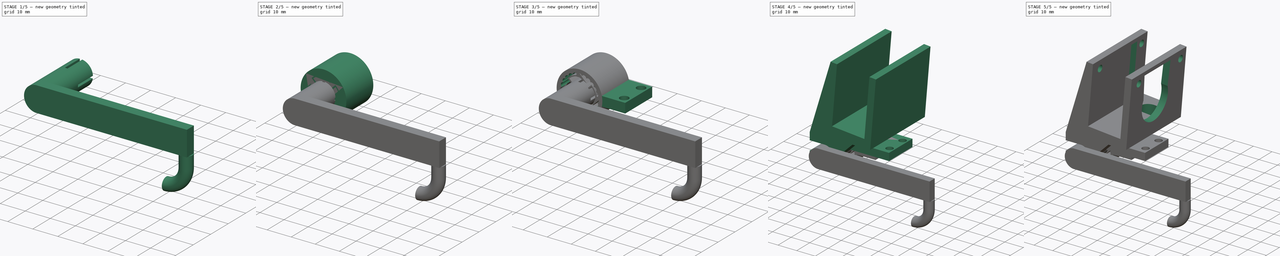
[diagram: build sequence overview — one tinted view per stage of 5, left to right]
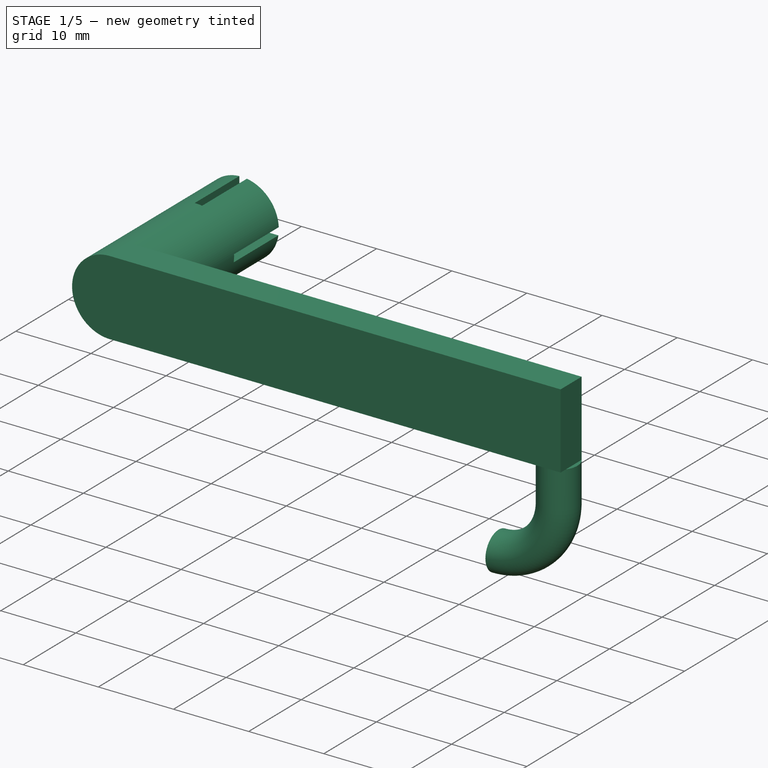
[diagram: stage 1 of 5 — iso view after this stage's code; geometry added in this stage tinted green]
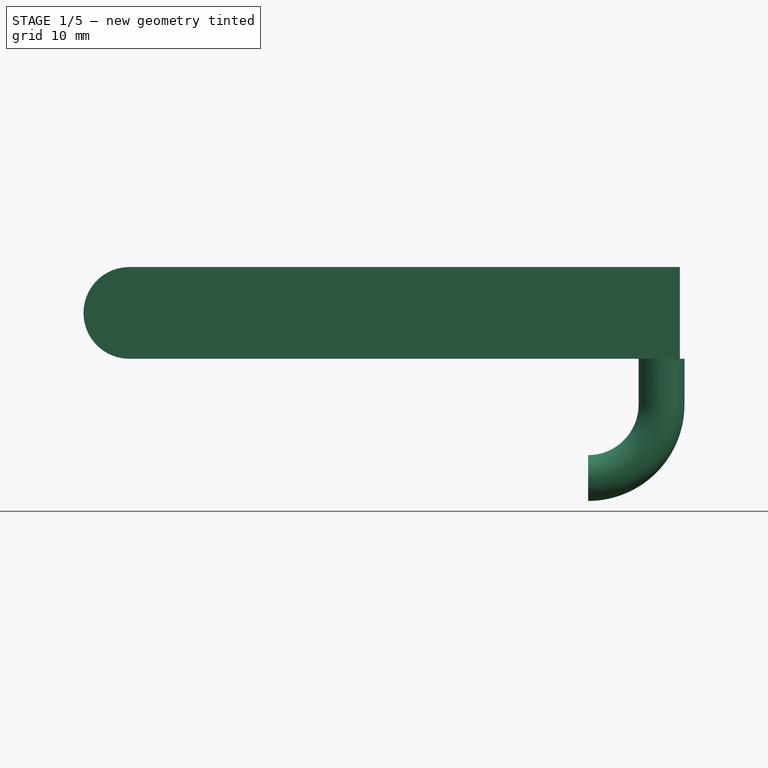
[diagram: stage 1 of 5 — front view after this stage's code; geometry added in this stage tinted green]
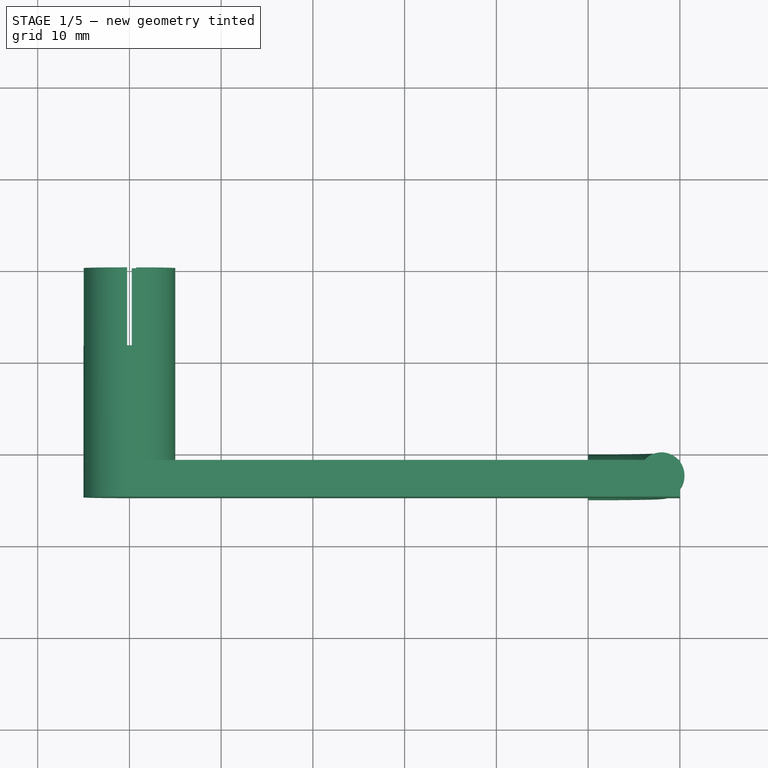
[diagram: stage 1 of 5 — top view after this stage's code; geometry added in this stage tinted green]
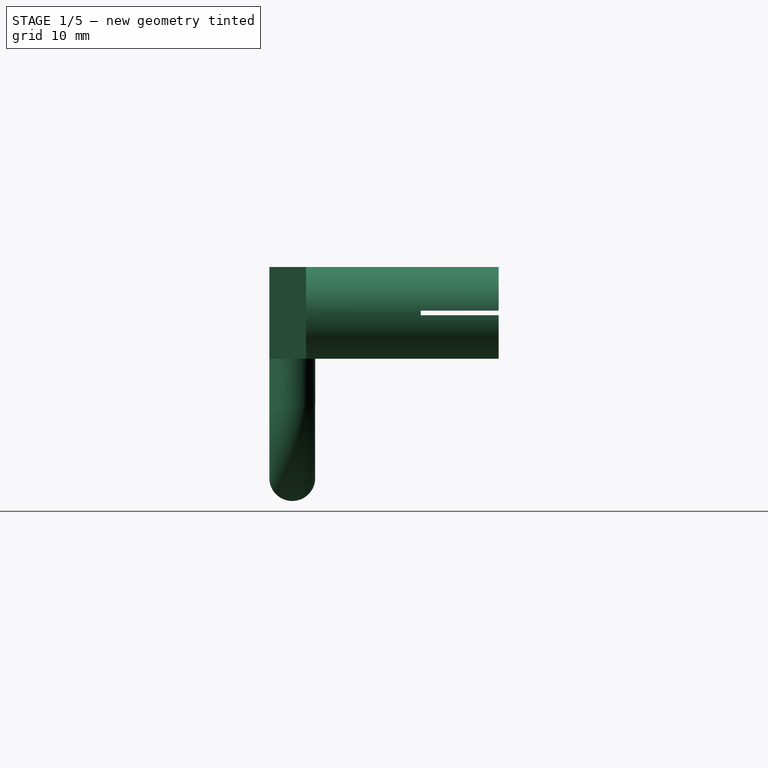
[diagram: stage 1 of 5 — right view after this stage's code; geometry added in this stage tinted green]
FCSTD DOCUMENT  (FreeCAD 0.19R24291 (Git))
Label: cameraholder
License: All rights reserved
LicenseURL: http://en.wikipedia.org/wiki/All_rights_reserved
objects: Sketcher::SketchObject×19, PartDesign::Pocket×10, PartDesign::Pad×7, PartDesign::Body×5, PartDesign::PolarPattern×2, PartDesign::AdditivePipe×1
note: 62 computed .brp shape members not serialized (recipe doc carries the construction recipe); baked Part::Feature solids carry a one-line shape summary decoded from their .brp

FEATURE [PartDesign::Body] Body012  label="rachet-in"
  Group = -> [Sketch080,Pad029,PolarPattern001]
  Origin = -> Origin012
  Placement = pos=(-12,0,2) rot=(0,1,0;0.785398rad)
  Tip = -> PolarPattern001
FEATURE [Sketcher::SketchObject] Sketch083
  FullyConstrained = true
  MapMode = 5
  Placement = pos=(0,0,0) rot=(1,0,0;1.5708rad)
  Support = -> [XZ_Plane013]
  sketch-geometry (1):
    g0: Circle CenterX=0 CenterY=0 CenterZ=0 NormalX=0 NormalY=0 NormalZ=1 AngleXU=0 Radius=5
  constraints (2):
    c: Coincident(g0,g-1)
    c: Diameter(g0) = 10
FEATURE [PartDesign::Pad] Pad031  label="poros"
  Direction = (1,1,1)
  Length = 25
  Length2 = 100
  Placement = pos=(0,0,0) rot=(1,0,0;1.5708rad)
  Profile = -> Sketch083
  Type = 0
FEATURE [Sketcher::SketchObject] Sketch084
  FullyConstrained = true
  MapMode = 5
  Placement = pos=(0,-25,5.5e-15) rot=(1,0,0;1.5708rad)
  Support = -> [Pad031]
  sketch-geometry (4):
    g0: LineSegment StartX=0 StartY=5 StartZ=0 EndX=60 EndY=5 EndZ=0
    g1: LineSegment StartX=60 StartY=5 StartZ=0 EndX=60 EndY=-5 EndZ=0
    g2: LineSegment StartX=60 StartY=-5 StartZ=0 EndX=0 EndY=-5 EndZ=0
    g3: LineSegment StartX=0 StartY=-5 StartZ=0 EndX=0 EndY=5 EndZ=0
  constraints (11):
    c: Coincident(g0,g1)
    c: Coincident(g1,g2)
    c: Coincident(g2,g3)
    c: Coincident(g3,g0)
    c: Horizontal(g0)
    c: Horizontal(g2)
    c: Vertical(g1)
    c: Vertical(g3)
    c: Symmetric(g0,g2,g-1)
    c: DistanceY(g3,g3) = 10
    c: DistanceX(g0,g0) = 60
FEATURE [PartDesign::Pad] Pad032  label="handle"
  BaseFeature = -> Pad031
  Direction = (1,1,1)
  Length = 4
  Length2 = 100
  Placement = pos=(0,0,0) rot=(1,0,0;1.5708rad)
  Profile = -> Sketch084
  Reversed = true
  Type = 0
FEATURE [Sketcher::SketchObject] Sketch085
  FullyConstrained = true
  MapMode = 5
  Placement = pos=(0,-4.7e-15,-5) rot=(1,0,0;3.14159rad)
  Support = -> [Pad032]
  sketch-geometry (1):
    g0: Circle CenterX=58 CenterY=22.5 CenterZ=0 NormalX=0 NormalY=0 NormalZ=1 AngleXU=0 Radius=2.5
  constraints (3):
    c: DistanceX(g0) = 58
    c: DistanceY(g0) = 22.5
    c: Diameter(g0) = 5
FEATURE [Sketcher::SketchObject] Sketch086
  AttachmentOffset = pos=(0,0,-2) rot=(0,0,1;0rad)
  FullyConstrained = true
  MapMode = 5
  Placement = pos=(0,-23,1.63e-14) rot=(1,0,0;1.5708rad)
  Support = -> [Pad032]
  sketch-geometry (2):
    g0: ArcOfCircle CenterX=50 CenterY=-10 CenterZ=0 NormalX=0 NormalY=0 NormalZ=1 AngleXU=0 Radius=8 StartAngle=4.71239 EndAngle=6.28319
    g1: LineSegment StartX=58 StartY=-10 StartZ=0 EndX=58 EndY=-5 EndZ=0
  constraints (8):
    c: Angle(g0) = 1.5708
    c: Vertical(g0,g0)
    c: Radius(g0) = 8
    c: DistanceX(g0) = 50
    c: Coincident(g1,g0)
    c: Vertical(g1)
    c: DistanceY(g1,g1) = 5
    c: DistanceY(g1) = -5
FEATURE [PartDesign::AdditivePipe] AdditivePipe
  AuxilleryCurvelinear = true
  AuxillerySpineTangent = false
  BaseFeature = -> Pad032
  Binormal = (0,0,0)
  Mode = 0
  Placement = pos=(0,0,0) rot=(1,0,0;1.5708rad)
  Profile = -> Sketch085
  Spine = -> Sketch086
  SpineTangent = false
  Transformation = 0
  Transition = 0
FEATURE [Sketcher::SketchObject] Sketch087
  FullyConstrained = true
  MapMode = 5
  Placement = pos=(0,0,0) rot=(-1,0,0;1.5708rad)
  Support = -> [AdditivePipe]
  sketch-geometry (12):
    g0: LineSegment StartX=-0.75 StartY=6.25 StartZ=0 EndX=-0.75 EndY=0.25 EndZ=0
    g1: LineSegment StartX=-0.75 StartY=0.25 StartZ=0 EndX=-6.25 EndY=0.25 EndZ=0
    g2: LineSegment StartX=-6.25 StartY=0.25 StartZ=0 EndX=-6.25 EndY=-0.75 EndZ=0
    g3: LineSegment StartX=-6.25 StartY=-0.75 StartZ=0 EndX=-0.25 EndY=-0.75 EndZ=0
    g4: LineSegment StartX=-0.25 StartY=-0.75 StartZ=0 EndX=-0.25 EndY=-6.25 EndZ=0
    g5: LineSegment StartX=-0.25 StartY=-6.25 StartZ=0 EndX=0.75 EndY=-6.25 EndZ=0
    g6: LineSegment StartX=0.75 StartY=-6.25 StartZ=0 EndX=0.75 EndY=-0.25 EndZ=0
    g7: LineSegment StartX=0.75 StartY=-0.25 StartZ=0 EndX=6.25 EndY=-0.25 EndZ=0
    g8: LineSegment StartX=6.25 StartY=-0.25 StartZ=0 EndX=6.25 EndY=0.75 EndZ=0
    g9: LineSegment StartX=6.25 StartY=0.75 StartZ=0 EndX=0.25 EndY=0.75 EndZ=0
    g10: LineSegment StartX=0.25 StartY=0.75 StartZ=0 EndX=0.25 EndY=6.25 EndZ=0
    g11: LineSegment StartX=0.25 StartY=6.25 StartZ=0 EndX=-0.75 EndY=6.25 EndZ=0
  constraints (36):
    c: Vertical(g0)
    c: Coincident(g0,g1)
    c: Coincident(g1,g2)
    c: Vertical(g2)
    c: Coincident(g2,g3)
    c: Horizontal(g3)
    c: Coincident(g3,g4)
    c: Vertical(g4)
    c: Coincident(g4,g5)
    c: Horizontal(g5)
    c: Coincident(g5,g6)
    c: Vertical(g6)
    c: Coincident(g6,g7)
    c: Horizontal(g7)
    c: Coincident(g7,g8)
    c: Vertical(g8)
    c: Coincident(g8,g9)
    c: Horizontal(g9)
    c: Coincident(g9,g10)
    c: Vertical(g10)
    c: Coincident(g10,g11)
    c: Coincident(g11,g0)
    c: Horizontal(g11)
    c: DistanceX(g11,g11) = 1
    c: Equal(g11,g2)
    c: Equal(g2,g5)
    c: Equal(g5,g8)
    c: Equal(g9,g0)
    c: Equal(g0,g3)
    c: Equal(g3,g6)
    c: Horizontal(g1)
    c: Equal(g4,g7)
    c: DistanceY(g8) = 0.75
    c: DistanceX(g9) = 0.25
    c: DistanceY(g0) = 0.25
    c: DistanceX(g3,g3) = 6
FEATURE [PartDesign::Pocket] Pocket027
  BaseFeature = -> AdditivePipe
  Length = 8.5
  Length2 = 100
  Placement = pos=(0,0,0) rot=(1,0,0;1.5708rad)
  Profile = -> Sketch087
  Type = 0
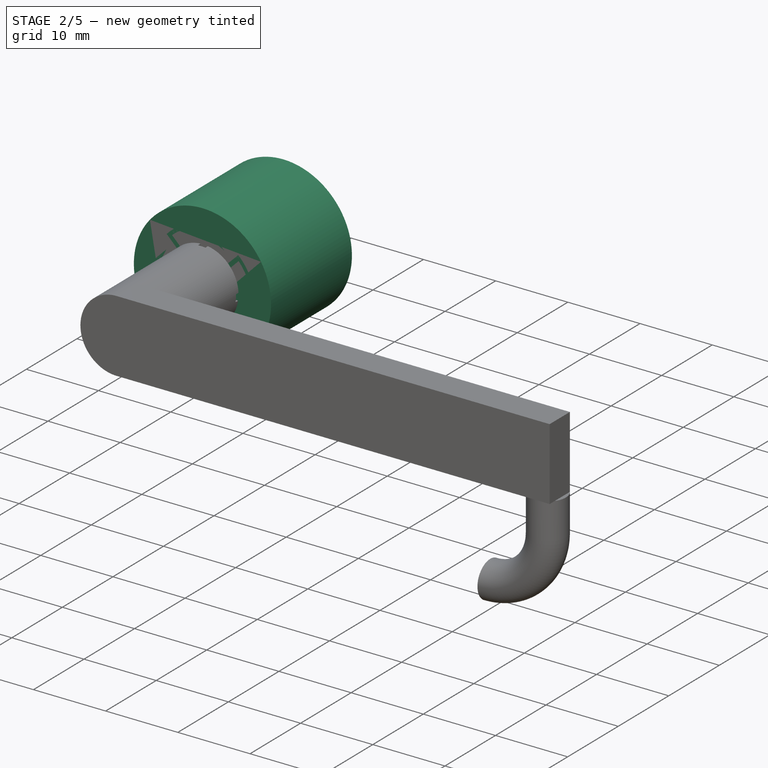
[diagram: stage 2 of 5 — iso view after this stage's code; geometry added in this stage tinted green]
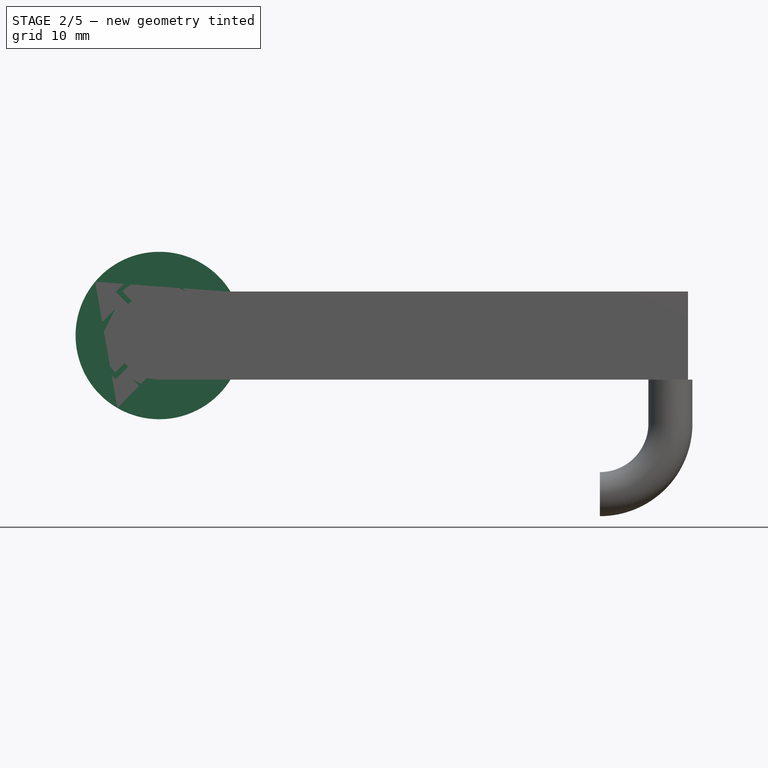
[diagram: stage 2 of 5 — front view after this stage's code; geometry added in this stage tinted green]
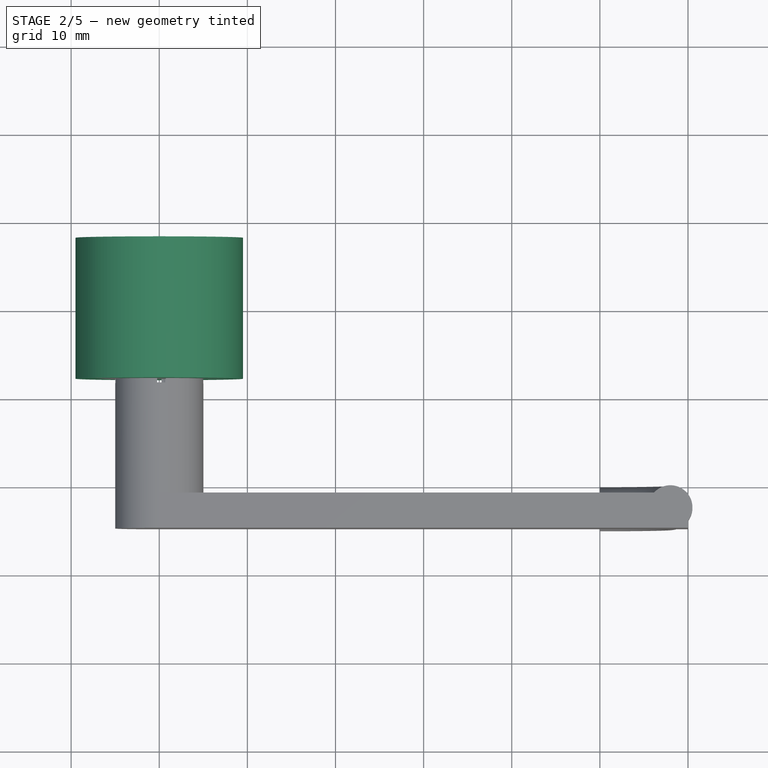
[diagram: stage 2 of 5 — top view after this stage's code; geometry added in this stage tinted green]
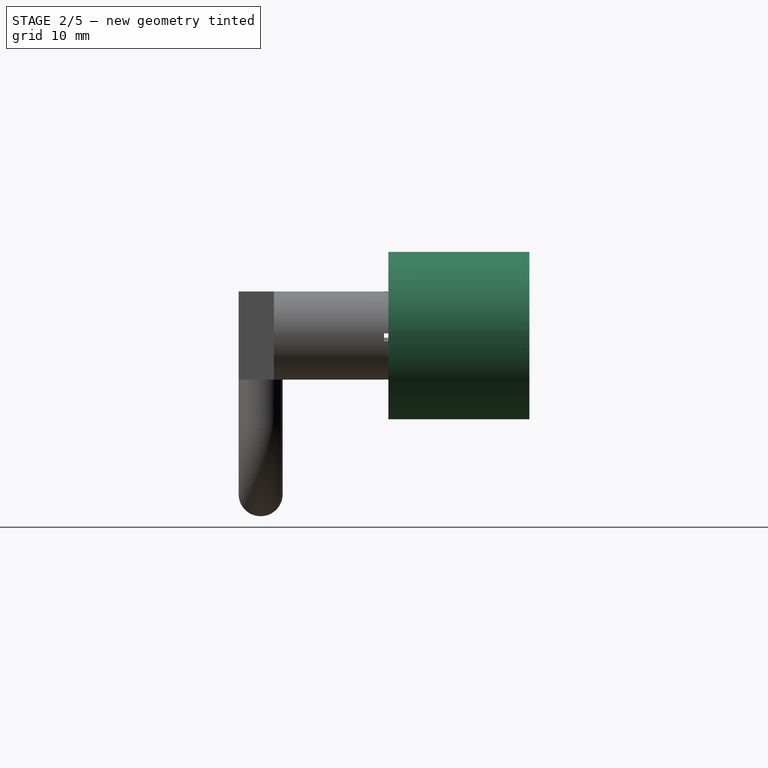
[diagram: stage 2 of 5 — right view after this stage's code; geometry added in this stage tinted green]
FEATURE [PartDesign::Body] Body010  label="camera-holder-clip"
  Group = -> [Sketch068,Pad026,Sketch069,Pocket020,Sketch070,Pocket021,Sketch071,Sketch072,Pocket022,Pocket023,Sketch073,Pocket024,Sketch074,Pocket025]
  Origin = -> Origin010
  Placement = pos=(8,0,0) rot=(0,0,1;0rad)
  Tip = -> Pocket025
FEATURE [Sketcher::SketchObject] Sketch078
  FullyConstrained = true
  MapMode = 5
  Placement = pos=(0,0,0) rot=(1,0,0;1.5708rad)
  Support = -> [XZ_Plane011]
  sketch-geometry (8):
    g0: Circle CenterX=0 CenterY=0 CenterZ=0 NormalX=0 NormalY=0 NormalZ=1 AngleXU=0 Radius=9
    g1: LineSegment StartX=0.866025 StartY=-7.5 StartZ=0 EndX=6.9282 EndY=3 EndZ=0
    g2: LineSegment StartX=6.06218 StartY=4.5 StartZ=0 EndX=-6.06218 EndY=4.5 EndZ=0
    g3: LineSegment StartX=-6.9282 StartY=3 StartZ=0 EndX=-0.866025 EndY=-7.5 EndZ=0
    g4: Circle CenterX=0 CenterY=0 CenterZ=0 NormalX=0 NormalY=0 NormalZ=1 AngleXU=0 Radius=7
    g5: ArcOfCircle CenterX=2.1866e-12 CenterY=-7 CenterZ=0 NormalX=0 NormalY=0 NormalZ=1 AngleXU=0 Radius=1 StartAngle=3.66519 EndAngle=5.75959
    g6: ArcOfCircle CenterX=6.06218 CenterY=3.5 CenterZ=0 NormalX=0 NormalY=0 NormalZ=1 AngleXU=0 Radius=1 StartAngle=5.75959 EndAngle=7.85398
    g7: ArcOfCircle CenterX=-6.06218 CenterY=3.5 CenterZ=0 NormalX=0 NormalY=0 NormalZ=1 AngleXU=0 Radius=1 StartAngle=1.5708 EndAngle=3.66519
  constraints (19):
    c: Diameter(g0) = 18
    c: Equal(g1,g2)
    c: Equal(g1,g3)
    c: Coincident(g4,g0)
    c: Tangent(g1,g5) = -1.5708
    c: Tangent(g3,g5) = -1.5708
    c: Tangent(g1,g6) = -1.5708
    c: Tangent(g2,g6) = -1.5708
    c: Tangent(g2,g7) = -1.5708
    c: Tangent(g3,g7) = -1.5708
    c: PointOnObject(g6,g4)
    c: PointOnObject(g7,g4)
    c: PointOnObject(g5,g4)
    c: Diameter(g6) = 2
    c: Equal(g6,g7)
    c: Equal(g7,g5)
    c: Horizontal(g2)
    c: Diameter(g4) = 14
    c: Coincident(g0,g-1)
FEATURE [Sketcher::SketchObject] Sketch079
  FullyConstrained = true
  MapMode = 5
  Placement = pos=(0,0,0) rot=(1,0,0;1.5708rad)
  Support = -> [XZ_Plane011]
  sketch-geometry (1):
    g0: Circle CenterX=0 CenterY=0 CenterZ=0 NormalX=0 NormalY=0 NormalZ=1 AngleXU=0 Radius=9.5
  constraints (2):
    c: Coincident(g0,g-1)
    c: Diameter(g0) = 19
FEATURE [PartDesign::Pad] Pad028
  Direction = (1,1,1)
  Length = 16
  Length2 = 100
  Midplane = true
  Placement = pos=(0,0,0) rot=(1,0,0;1.5708rad)
  Profile = -> Sketch079
  Reversed = true
  Type = 0
FEATURE [Sketcher::SketchObject] Sketch080
  FullyConstrained = true
  MapMode = 5
  Placement = pos=(0,0,0) rot=(1,0,0;1.5708rad)
  Support = -> [XZ_Plane012]
  sketch-geometry (10):
    g0: ArcOfCircle CenterX=0 CenterY=6.5 CenterZ=0 NormalX=0 NormalY=0 NormalZ=1 AngleXU=0 Radius=1.5 StartAngle=1.5708 EndAngle=2.80176
    g1: ArcOfCircle CenterX=0 CenterY=0.487745 CenterZ=0 NormalX=0 NormalY=0 NormalZ=1 AngleXU=0 Radius=6.66404 StartAngle=1.78464 EndAngle=2.40797
    g2: ArcOfCircle CenterX=0 CenterY=0.487745 CenterZ=0 NormalX=0 NormalY=0 NormalZ=1 AngleXU=0 Radius=6.17634 StartAngle=1.80182 EndAngle=2.32044
    g3: LineSegment StartX=-4.20841 StartY=5.00841 StartZ=0 EndX=0 EndY=0.8 EndZ=0
    g4: LineSegment StartX=-1.41421 StartY=7 StartZ=0 EndX=-1.41421 EndY=6.5 EndZ=0
    g5: LineSegment StartX=-1.41421 StartY=6.5 StartZ=0 EndX=0 EndY=6.5 EndZ=0
    g6: ArcOfCircle CenterX=0 CenterY=0 CenterZ=0 NormalX=0 NormalY=0 NormalZ=1 AngleXU=0 Radius=0.8 StartAngle=2.35619 EndAngle=7.85398
    g7: LineSegment StartX=-4.94975 StartY=4.94975 StartZ=0 EndX=-0.565685 EndY=0.565685 EndZ=0
    g8: LineSegment StartX=1e-16 StartY=8 StartZ=0 EndX=3 EndY=5.00841 EndZ=0
    g9: LineSegment StartX=3 StartY=5.00841 StartZ=0 EndX=0 EndY=6.5 EndZ=0
  constraints (30):
    c: PointOnObject(g1,g-2)
    c: Coincident(g1,g0)
    c: Diameter(g0) = 3
    c: DistanceY(g0) = 6.5
    c: Coincident(g2,g1)
    c: Coincident(g3,g2)
    c: PointOnObject(g3,g-2)
    c: DistanceY(g3) = 0.8
    c: Vertical(g2,g0)
    c: Coincident(g4,g0)
    c: Coincident(g4,g2)
    c: PointOnObject(g0,g-2)
    c: PointOnObject(g0,g-2)
    c: Coincident(g5,g2)
    c: Horizontal(g5)
    c: DistanceY(g4,g4) = 0.5
    c: Angle(g3,g-2) = 2.35619
    c: Coincident(g6,g3)
    c: Coincident(g7,g1)
    c: Coincident(g7,g6)
    c: Parallel(g7,g3)
    c: Distance(g1,g6) = 7
    c: Coincident(g6,g-1)
    c: Angle(g6) = 5.49779
    c: Coincident(g8,g0)
    c: Coincident(g9,g8)
    c: Coincident(g9,g0)
    c: Horizontal(g8,g2)
    c: DistanceX(g0,g8) = 3
    c: Coincident(g0,g5)
FEATURE [PartDesign::Pad] Pad029
  Direction = (1,1,1)
  Length = 16
  Length2 = 100
  Midplane = true
  Placement = pos=(0,0,0) rot=(1,0,0;1.5708rad)
  Profile = -> Sketch080
  Type = 0
FEATURE [PartDesign::Body] Body011  label="rachet-out"
  Group = -> [Sketch078,Sketch079,Pad028,Pocket026,PolarPattern,Sketch081,Pad030,Sketch082,Pocket]
  Origin = -> Origin011
  Placement = pos=(-12,0,2) rot=(0,0,1;0rad)
  Tip = -> Pocket
FEATURE [PartDesign::PolarPattern] PolarPattern001
  Angle = 360
  Axis = -> Sketch080 [N_Axis]
  BaseFeature = -> Pad029
  Occurrences = 4
  Originals = -> [Pad029]
  Placement = pos=(0,0,0) rot=(1,0,0;1.5708rad)
FEATURE [Sketcher::SketchObject] Sketch088
  AttachmentOffset = pos=(0,0,0) rot=(0,1,0;3.14159rad)
  FullyConstrained = true
  MapMode = 5
  Placement = pos=(0,0,0) rot=(0,0.707107,0.707107;3.14159rad)
  Support = -> [XZ_Plane013]
  sketch-geometry (1):
    g0: Circle CenterX=0 CenterY=0 CenterZ=0 NormalX=0 NormalY=0 NormalZ=1 AngleXU=0 Radius=1
  constraints (2):
    c: Coincident(g0,g-1)
    c: Diameter(g0) = 2
FEATURE [PartDesign::Pocket] Pocket028
  BaseFeature = -> Pocket027
  Length = 8.5
  Length2 = 100
  Placement = pos=(0,0,0) rot=(1,0,0;1.5708rad)
  Profile = -> Sketch088
  Type = 0
FEATURE [PartDesign::Body] Body013  label="suckerhandle"
  Group = -> [Sketch083,Pad031,Sketch084,Pad032,Sketch085,Sketch086,AdditivePipe,Sketch087,Pocket027,Sketch088,Pocket028]
  Origin = -> Origin013
  Placement = pos=(-12,0,2) rot=(0,0,1;0rad)
  Tip = -> Pocket028
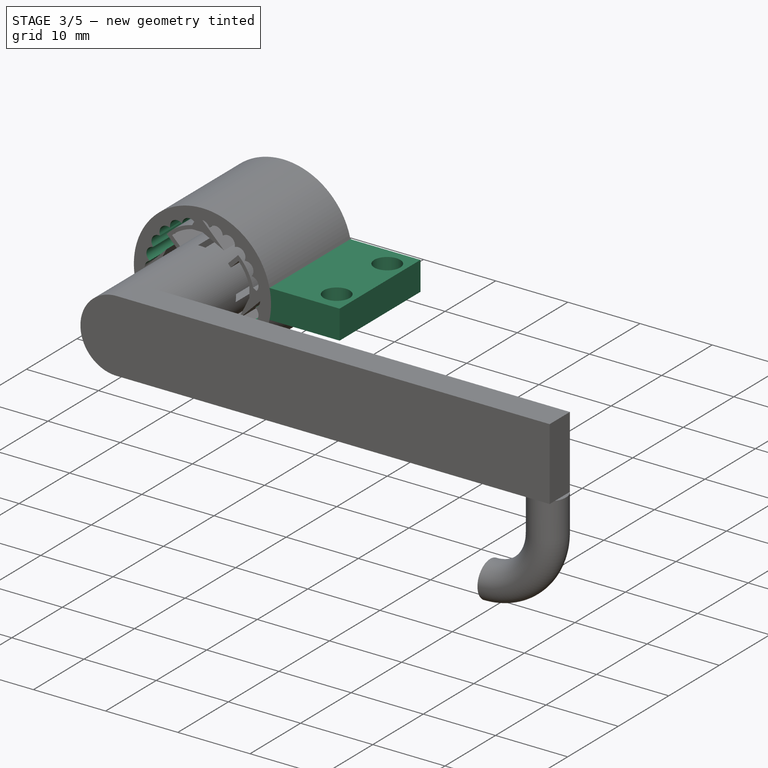
[diagram: stage 3 of 5 — iso view after this stage's code; geometry added in this stage tinted green]
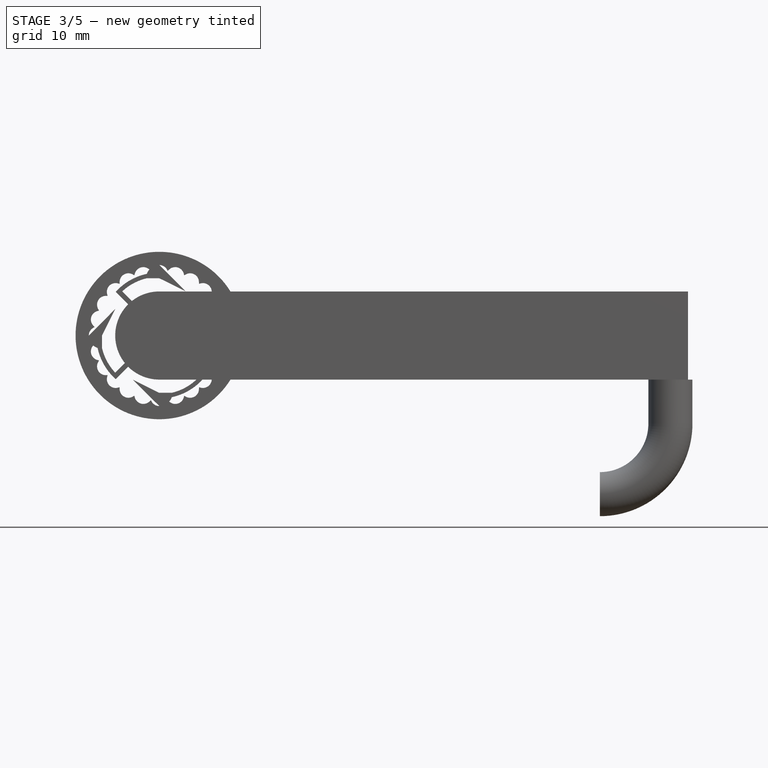
[diagram: stage 3 of 5 — front view after this stage's code; geometry added in this stage tinted green]
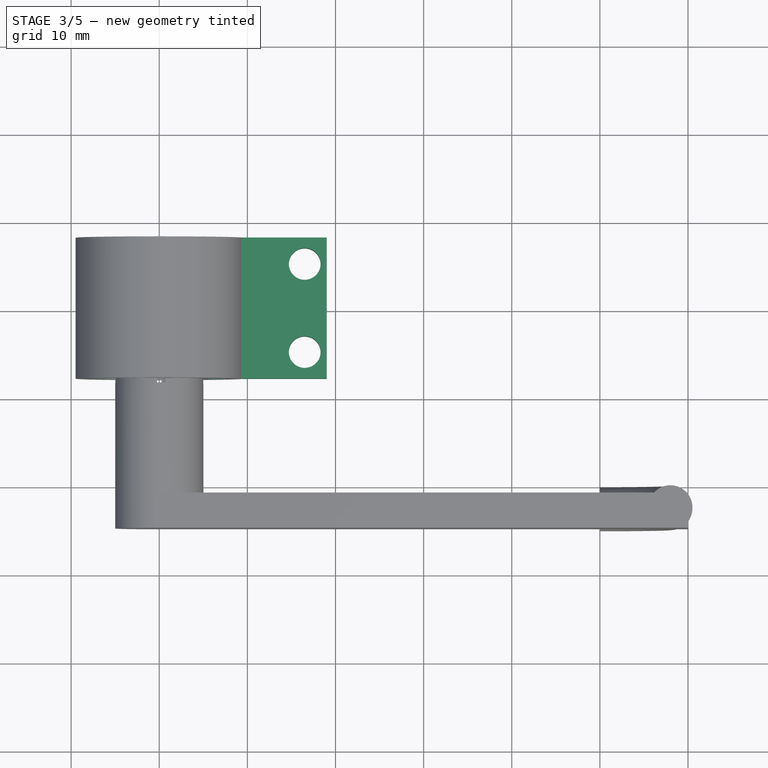
[diagram: stage 3 of 5 — top view after this stage's code; geometry added in this stage tinted green]
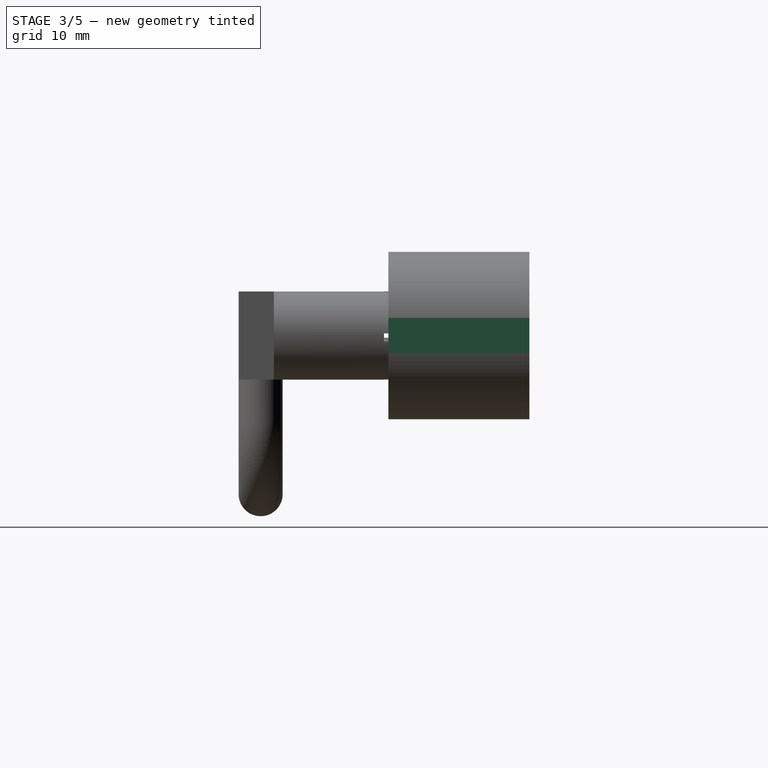
[diagram: stage 3 of 5 — right view after this stage's code; geometry added in this stage tinted green]
FEATURE [PartDesign::Pocket] Pocket026
  BaseFeature = -> Pad028
  Length = 5
  Length2 = 100
  Midplane = true
  Placement = pos=(0,0,0) rot=(1,0,0;1.5708rad)
  Profile = -> Sketch078
  Type = 1
FEATURE [PartDesign::PolarPattern] PolarPattern
  Angle = 360
  Axis = -> Y_Axis011
  BaseFeature = -> Pocket026
  Occurrences = 8
  Originals = -> [Pocket026]
  Placement = pos=(0,0,0) rot=(1,0,0;1.5708rad)
FEATURE [PartDesign::Body] Body
  Group = -> [Sketch,Pad]
  Origin = -> Origin
  Placement = pos=(-20,0,0) rot=(0,0,1;0rad)
  Tip = -> Pad
FEATURE [Sketcher::SketchObject] Sketch081
  FullyConstrained = true
  MapMode = 5
  Placement = pos=(0,0,0) rot=(1,0,0;1.5708rad)
  Support = -> [XZ_Plane011]
  sketch-geometry (4):
    g0: LineSegment StartX=19 StartY=2 StartZ=0 EndX=9 EndY=2 EndZ=0
    g1: LineSegment StartX=9 StartY=2 StartZ=0 EndX=9 EndY=-2 EndZ=0
    g2: LineSegment StartX=9 StartY=-2 StartZ=0 EndX=19 EndY=-2 EndZ=0
    g3: LineSegment StartX=19 StartY=-2 StartZ=0 EndX=19 EndY=2 EndZ=0
  constraints (11):
    c: Coincident(g0,g1)
    c: Coincident(g1,g2)
    c: Coincident(g2,g3)
    c: Coincident(g3,g0)
    c: Horizontal(g0)
    c: Horizontal(g2)
    c: Vertical(g1)
    c: DistanceX(g-1,g1) = 9
    c: DistanceX(g0,g0) = 10
    c: Symmetric(g0,g2,g-1)
    c: DistanceY(g3,g3) = 4
FEATURE [PartDesign::Pad] Pad030
  BaseFeature = -> PolarPattern
  Direction = (1,1,1)
  Length = 16
  Length2 = 100
  Midplane = true
  Placement = pos=(0,0,0) rot=(1,0,0;1.5708rad)
  Profile = -> Sketch081
  Type = 0
FEATURE [Sketcher::SketchObject] Sketch082
  FullyConstrained = true
  MapMode = 5
  Placement = pos=(0,9e-16,2) rot=(0,0,1;3.14159rad)
  Support = -> [Pad030]
  sketch-geometry (2):
    g0: Circle CenterX=-16.5 CenterY=5 CenterZ=0 NormalX=0 NormalY=0 NormalZ=1 AngleXU=0 Radius=1.8
    g1: Circle CenterX=-16.5 CenterY=-5 CenterZ=0 NormalX=0 NormalY=0 NormalZ=1 AngleXU=0 Radius=1.8
  constraints (5):
    c: Symmetric(g1,g0,g-1)
    c: DistanceX(g0) = -16.5
    c: Diameter(g0) = 3.6
    c: Equal(g0,g1)
    c: DistanceY(g1,g0) = 10
FEATURE [PartDesign::Pocket] Pocket
  BaseFeature = -> Pad030
  Length = 5
  Length2 = 100
  Placement = pos=(0,0,0) rot=(1,0,0;1.5708rad)
  Profile = -> Sketch082
  Type = 1
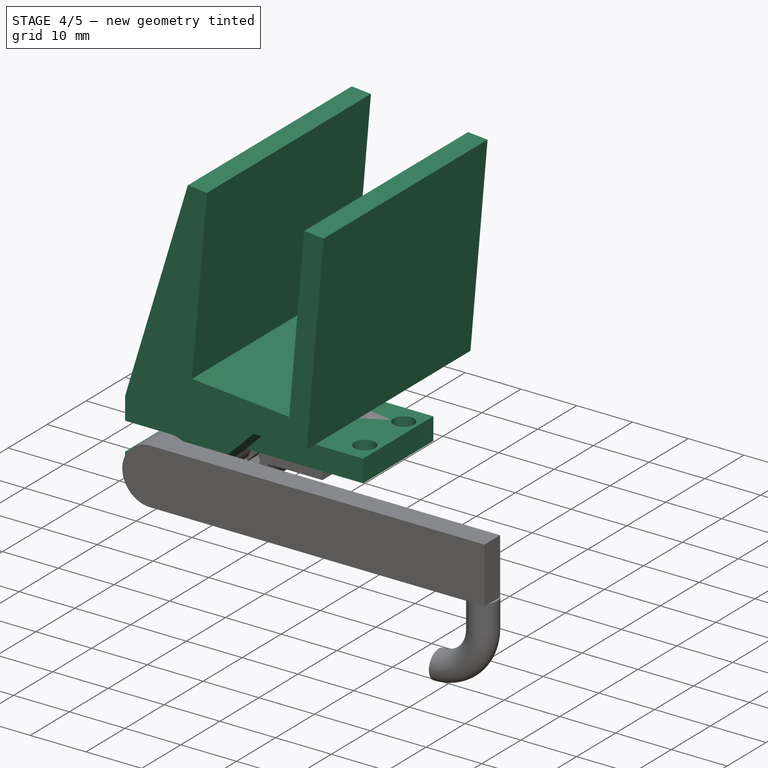
[diagram: stage 4 of 5 — iso view after this stage's code; geometry added in this stage tinted green]
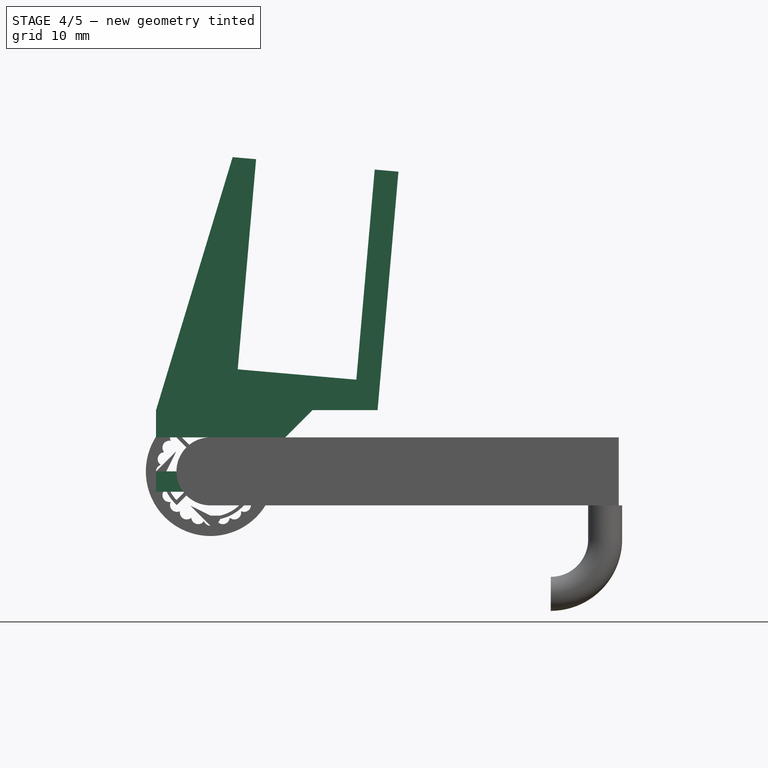
[diagram: stage 4 of 5 — front view after this stage's code; geometry added in this stage tinted green]
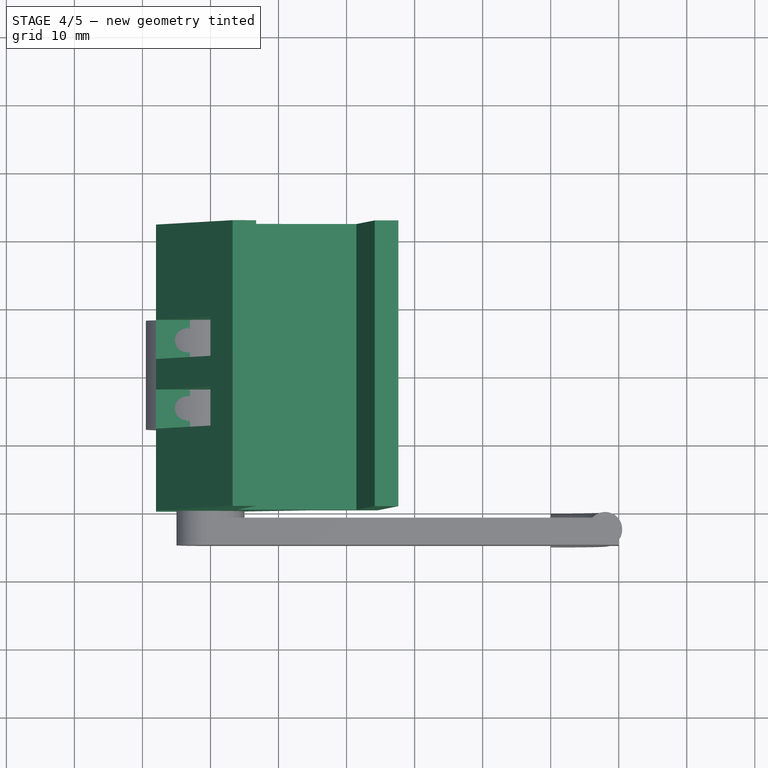
[diagram: stage 4 of 5 — top view after this stage's code; geometry added in this stage tinted green]
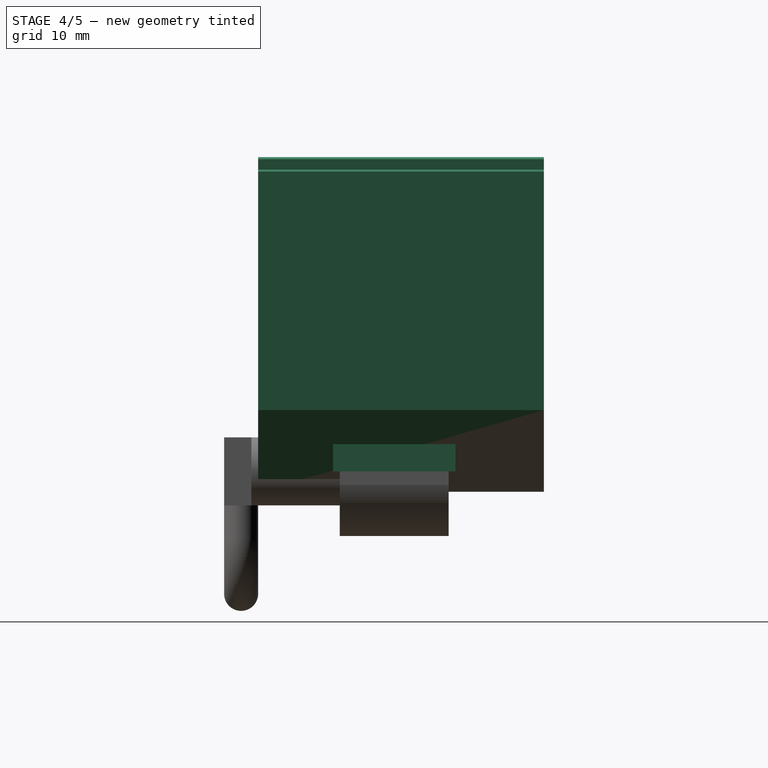
[diagram: stage 4 of 5 — right view after this stage's code; geometry added in this stage tinted green]
FEATURE [Sketcher::SketchObject] Sketch074
  AttachmentOffset = pos=(0,15,4) rot=(1,0,0;-1.48353rad)
  FullyConstrained = false
  MapMode = 5
  Placement = pos=(4,2.4e-15,15) rot=(-0.043578,-0.043578,-0.998099;4.71049rad)
  Support = -> [YZ_Plane010]
  sketch-geometry (6):
    g0: Circle CenterX=12 CenterY=-10.5 CenterZ=0 NormalX=0 NormalY=0 NormalZ=1 AngleXU=0 Radius=4.5
    g1: LineSegment StartX=7.5 StartY=-10.5 StartZ=0 EndX=16.5 EndY=-10.5 EndZ=0
    g2: LineSegment StartX=16.5 StartY=-10.5 StartZ=0 EndX=16.5 EndY=-15 EndZ=0
    g3: LineSegment StartX=16.5 StartY=-15 StartZ=0 EndX=7.5 EndY=-15 EndZ=0
    g4: LineSegment StartX=7.5 StartY=-15 StartZ=0 EndX=7.5 EndY=-10.5 EndZ=0
    g5: ArcOfCircle CenterX=12 CenterY=-10.5 CenterZ=0 NormalX=0 NormalY=0 NormalZ=1 AngleXU=0 Radius=4.5 StartAngle=0 EndAngle=3.14159
  constraints (17):
    c: Diameter(g0) = 9
    c: DistanceY(g0,g-1) = 10.5
    c: Coincident(g1,g2)
    c: Coincident(g2,g3)
    c: Coincident(g3,g4)
    c: Coincident(g4,g1)
    c: Horizontal(g1)
    c: Horizontal(g3)
    c: Vertical(g2)
    c: Vertical(g4)
    c: PointOnObject(g1,g0)
    c: Horizontal(g1,g0)
    c: DistanceY(g2,g2) = 4.5
    c: DistanceX(g-1,g0) = 12
    c: Coincident(g5,g0)
    c: Coincident(g5,g1)
    c: Coincident(g5,g1)
FEATURE [Sketcher::SketchObject] Sketch073
  AttachmentOffset = pos=(0,15,4) rot=(1,0,0;0.087266rad)
  FullyConstrained = false
  MapMode = 5
  Placement = pos=(4,2.4e-15,15) rot=(0.593426,0.593426,0.543775;2.14549rad)
  Support = -> [YZ_Plane010]
  sketch-geometry (5):
    g0: ArcOfCircle CenterX=12 CenterY=7 CenterZ=0 NormalX=0 NormalY=0 NormalZ=1 AngleXU=0 Radius=2.25 StartAngle=3.14159 EndAngle=6.28319
    g1: LineSegment StartX=14.25 StartY=7 StartZ=0 EndX=9.75 EndY=7 EndZ=0
    g2: LineSegment StartX=9.75 StartY=7 StartZ=0 EndX=9.75 EndY=29 EndZ=0
    g3: LineSegment StartX=9.75 StartY=29 StartZ=0 EndX=14.25 EndY=29 EndZ=0
    g4: LineSegment StartX=14.25 StartY=29 StartZ=0 EndX=14.25 EndY=7 EndZ=0
  constraints (15):
    c: DistanceX(g0) = 12
    c: DistanceY(g0) = 7
    c: Horizontal(g0,g0)
    c: Coincident(g1,g2)
    c: Coincident(g2,g3)
    c: Coincident(g3,g4)
    c: Coincident(g4,g1)
    c: Horizontal(g3)
    c: Vertical(g2)
    c: Vertical(g4)
    c: Coincident(g1,g0)
    c: Coincident(g1,g0)
    c: Diameter(g0) = 4.5
    c: DistanceY(g4,g4) = 22
    c: Angle(g0) = 3.14159
FEATURE [Sketcher::SketchObject] Sketch070
  AttachmentOffset = pos=(0,0,9) rot=(0,0,1;0rad)
  FullyConstrained = false
  MapMode = 5
  Placement = pos=(0,0,9) rot=(0,0,1;0rad)
  Support = -> [XY_Plane010]
  sketch-geometry (2):
    g0: Circle CenterX=-3.5 CenterY=-5 CenterZ=0 NormalX=0 NormalY=0 NormalZ=1 AngleXU=0 Radius=1.75
    g1: Circle CenterX=-3.5 CenterY=5 CenterZ=0 NormalX=0 NormalY=0 NormalZ=1 AngleXU=0 Radius=1.75
  constraints (5):
    c: Symmetric(g0,g1,g-1)
    c: DistanceY(g0,g1) = 10
    c: DistanceX(g1,g-1) = 3.5
    c: Diameter(g1) = 3.5
    c: Equal(g1,g0)
FEATURE [Sketcher::SketchObject] Sketch068
  FullyConstrained = false
  MapMode = 5
  Placement = pos=(0,0,0) rot=(1,0,0;1.5708rad)
  Support = -> [XZ_Plane010]
  sketch-geometry (22):
    g0: LineSegment StartX=-8 StartY=5 StartZ=0 EndX=-8 EndY=9 EndZ=0
    g1: LineSegment StartX=3 StartY=-3 StartZ=0 EndX=-8 EndY=-3 EndZ=0
    g2: LineSegment StartX=-8 StartY=-3 StartZ=0 EndX=-8 EndY=0 EndZ=0
    g3: LineSegment StartX=-8 StartY=0 StartZ=0 EndX=0 EndY=0 EndZ=0
    g4: LineSegment StartX=-8 StartY=5 StartZ=0 EndX=0 EndY=5 EndZ=0
    g5: LineSegment StartX=0 StartY=5 StartZ=0 EndX=0 EndY=0 EndZ=0
    g6: GeomPoint X=0 Y=0 Z=0
    g7: GeomPoint X=0 Y=0 Z=0
    g8: LineSegment StartX=-8 StartY=9 StartZ=0 EndX=0 EndY=9 EndZ=0
    g9: LineSegment StartX=-2e-16 StartY=9 StartZ=0 EndX=3.25316 EndY=46.1838 EndZ=0
    g10: LineSegment StartX=3.25316 StartY=46.1838 StartZ=0 EndX=6.70183 EndY=45.882 EndZ=0
    g11: LineSegment StartX=6.70183 StartY=45.882 StartZ=0 EndX=4 EndY=15 EndZ=0
    g12: LineSegment StartX=4 StartY=15 StartZ=0 EndX=21.4334 EndY=13.4748 EndZ=0
    g13: LineSegment StartX=21.4334 StartY=13.4748 StartZ=0 EndX=24.1352 EndY=44.3568 EndZ=0
    g14: LineSegment StartX=24.1352 StartY=44.3568 StartZ=0 EndX=27.6219 EndY=44.0518 EndZ=0
    g15: LineSegment StartX=27.6219 StartY=44.0518 StartZ=0 EndX=24.5553 EndY=9 EndZ=0
    g16: LineSegment StartX=24.5553 StartY=9 StartZ=0 EndX=3 EndY=9 EndZ=0
    g17: LineSegment StartX=3 StartY=9 StartZ=0 EndX=3 EndY=-3 EndZ=0
    g18: LineSegment StartX=3.25316 StartY=46.1838 StartZ=0 EndX=-8 EndY=9 EndZ=0
    g19: LineSegment StartX=3 StartY=-3 StartZ=0 EndX=15 EndY=9 EndZ=0
    g20: LineSegment StartX=3 StartY=5 StartZ=0 EndX=11 EndY=5 EndZ=0
    g21: LineSegment StartX=15 StartY=9 StartZ=0 EndX=24.5553 EndY=9 EndZ=0
  constraints (61):
    c: Vertical(g0)
    c: Horizontal(g1)
    c: Coincident(g1,g2)
    c: Vertical(g2)
    c: Coincident(g2,g3)
    c: Horizontal(g3)
    c: Coincident(g0,g4)
    c: Horizontal(g4)
    c: Coincident(g4,g5)
    c: Coincident(g5,g3)
    c: Vertical(g5)
    c: Coincident(g6,g3)
    c: Coincident(g7,g-1)
    c: Coincident(g3,g7)
    c: DistanceY(g5,g5) = 5
    c: Vertical(g2,g0)
    c: DistanceX(g3,g3) = 8
    c: DistanceY(g2,g2) = 3
    c: DistanceY(g0,g0) = 4
    c: Coincident(g0,g8)
    c: Horizontal(g8)
    c: Coincident(g8,g9)
    c: Coincident(g9,g10)
    c: Coincident(g10,g11)
    c: Coincident(g11,g12)
    c: DistanceX(g0,g8) = 8
    c: Parallel(g11,g9)
    c: Angle(g10,g11) = 1.5708
    c: Distance(g10) = 3.46184
    c: Angle(g9,g8) = 1.65806
    c: Angle(g12,g11) = 1.5708
    c: Distance(g12) = 17.5
    c: Distance(g11) = 31
    c: Coincident(g12,g13)
    c: Coincident(g13,g14)
    c: Coincident(g14,g15)
    c: Coincident(g15,g16)
    c: Coincident(g16,g17)
    c: Coincident(g17,g1)
    c: Horizontal(g15,g8)
    c: Parallel(g15,g13)
    c: Parallel(g12,g14)
    c: Angle(g13,g12) = 1.5708
    c: DistanceX(g11) = 4
    c: DistanceY(g11) = 15
    c: Vertical(g17)
    c: Horizontal(g16)
    c: Distance(g13) = 31
    c: Coincident(g18,g10)
    c: Coincident(g18,g0)
    c: Coincident(g19,g1)
    c: PointOnObject(g19,g16)
    c: PointOnObject(g20,g17)
    c: PointOnObject(g20,g19)
    c: Horizontal(g20)
    c: DistanceY(g1,g20) = 8
    c: DistanceX(g4,g20) = 11
    c: Coincident(g21,g19)
    c: Coincident(g21,g15)
    c: Distance(g14) = 3.5
    c: DistanceX(g3,g1) = 3
FEATURE [PartDesign::Pad] Pad026  label="main002"
  AllowMultiFace = false
  Direction = (1,1,1)
  Length = 20
  Length2 = 22
  Placement = pos=(0,0,0) rot=(1,0,0;1.5708rad)
  Profile = -> Sketch068
  Type = 4
FEATURE [Sketcher::SketchObject] Sketch069
  AttachmentOffset = pos=(0,0,9) rot=(0,0,1;0rad)
  FullyConstrained = false
  MapMode = 5
  Placement = pos=(0,0,9) rot=(0,0,1;0rad)
  Support = -> [XY_Plane010]
  sketch-geometry (10):
    g0: LineSegment StartX=-10 StartY=2.25 StartZ=0 EndX=0 EndY=2.25 EndZ=0
    g1: LineSegment StartX=0 StartY=2.25 StartZ=0 EndX=0 EndY=-2.25 EndZ=0
    g2: LineSegment StartX=0 StartY=-2.25 StartZ=0 EndX=-10 EndY=-2.25 EndZ=0
    g3: LineSegment StartX=-10 StartY=-2.25 StartZ=0 EndX=-10 EndY=2.25 EndZ=0
    g4: LineSegment StartX=-10 StartY=-2.25 StartZ=0 EndX=-10 EndY=-8 EndZ=0
    g5: LineSegment StartX=0 StartY=-8 StartZ=0 EndX=0 EndY=-2.25 EndZ=0
    g6: LineSegment StartX=-10 StartY=-8 StartZ=0 EndX=0 EndY=-8 EndZ=0
    g7: LineSegment StartX=0 StartY=2.25 StartZ=0 EndX=0 EndY=8 EndZ=0
    g8: LineSegment StartX=0 StartY=8 StartZ=0 EndX=-10 EndY=8 EndZ=0
    g9: LineSegment StartX=-10 StartY=8 StartZ=0 EndX=-10 EndY=2.25 EndZ=0
  constraints (27):
    c: Coincident(g0,g1)
    c: Coincident(g1,g2)
    c: Coincident(g2,g3)
    c: Coincident(g3,g0)
    c: Horizontal(g0)
    c: Horizontal(g2)
    c: Vertical(g1)
    c: PointOnObject(g1,g-2)
    c: Symmetric(g0,g2,g-1)
    c: DistanceY(g3,g3) = 4.5
    c: DistanceX(g2,g2) = 10
    c: Coincident(g4,g2)
    c: Vertical(g4)
    c: PointOnObject(g5,g-2)
    c: Coincident(g5,g1)
    c: Coincident(g6,g4)
    c: Coincident(g6,g5)
    c: Horizontal(g6)
    c: Coincident(g0,g7)
    c: PointOnObject(g7,g-2)
    c: Coincident(g7,g8)
    c: Horizontal(g8)
    c: Coincident(g8,g9)
    c: Coincident(g9,g0)
    c: Vertical(g9)
    c: DistanceY(g4,g4) = 5.75
    c: DistanceY(g9,g9) = 5.75
FEATURE [PartDesign::Pocket] Pocket020  label="screw-head-space"
  AllowMultiFace = false
  BaseFeature = -> Pad026
  Length = 5
  Length2 = 100
  Placement = pos=(0,0,0) rot=(1,0,0;1.5708rad)
  Profile = -> Sketch069
  Reversed = true
  Type = 1
FEATURE [PartDesign::Pocket] Pocket021  label="screw-bottom"
  AllowMultiFace = false
  BaseFeature = -> Pocket020
  Length = 5
  Length2 = 100
  Placement = pos=(0,0,0) rot=(1,0,0;1.5708rad)
  Profile = -> Sketch070
  Type = 1
FEATURE [Sketcher::SketchObject] Sketch
  FullyConstrained = true
  MapMode = 5
  Support = -> [XY_Plane]
  sketch-geometry (6):
    g0: LineSegment StartX=-3 StartY=9 StartZ=0 EndX=27 EndY=9 EndZ=0
    g1: LineSegment StartX=27 StartY=9 StartZ=0 EndX=27 EndY=-9 EndZ=0
    g2: LineSegment StartX=27 StartY=-9 StartZ=0 EndX=-3 EndY=-9 EndZ=0
    g3: LineSegment StartX=-3 StartY=-9 StartZ=0 EndX=-3 EndY=9 EndZ=0
    g4: Circle CenterX=24.5 CenterY=5 CenterZ=0 NormalX=0 NormalY=0 NormalZ=1 AngleXU=0 Radius=1.85
    g5: Circle CenterX=24.5 CenterY=-5 CenterZ=0 NormalX=0 NormalY=0 NormalZ=1 AngleXU=0 Radius=1.85
  constraints (16):
    c: Coincident(g0,g1)
    c: Coincident(g1,g2)
    c: Coincident(g2,g3)
    c: Coincident(g3,g0)
    c: Horizontal(g0)
    c: Horizontal(g2)
    c: Vertical(g1)
    c: DistanceX(g-1,g1) = 27
    c: Symmetric(g0,g2,g-1)
    c: Symmetric(g4,g5,g-1)
    c: DistanceY(g5,g4) = 10
    c: Diameter(g5) = 3.7
    c: Equal(g5,g4)
    c: DistanceY(g3,g3) = 18
    c: DistanceX(g2,g2) = 30
    c: DistanceX(g4,g1) = 2.5
FEATURE [PartDesign::Pad] Pad
  Direction = (1,1,1)
  Length = 4
  Length2 = 100
  Profile = -> Sketch
  Type = 0
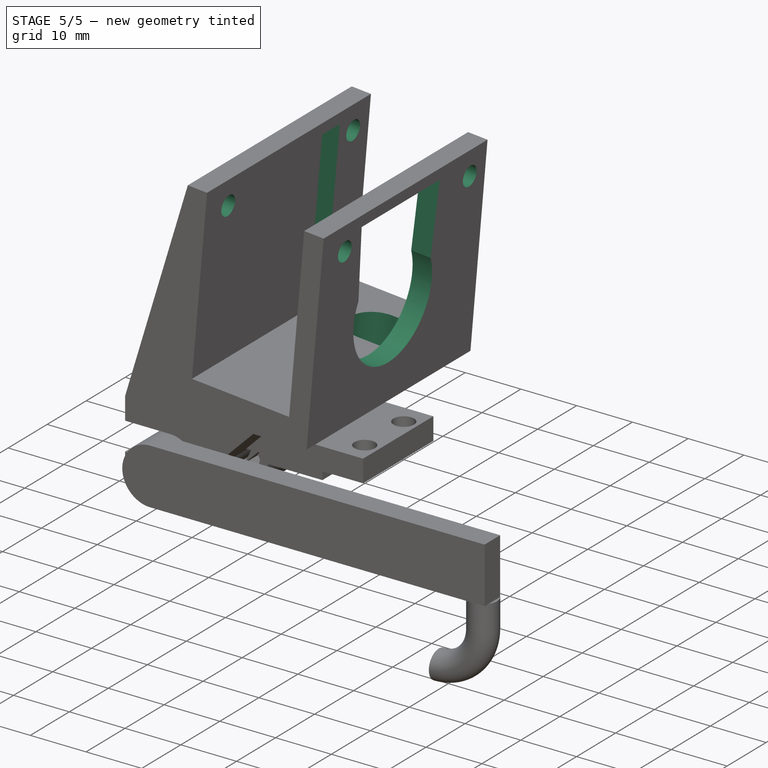
[diagram: stage 5 of 5 — iso view after this stage's code; geometry added in this stage tinted green]
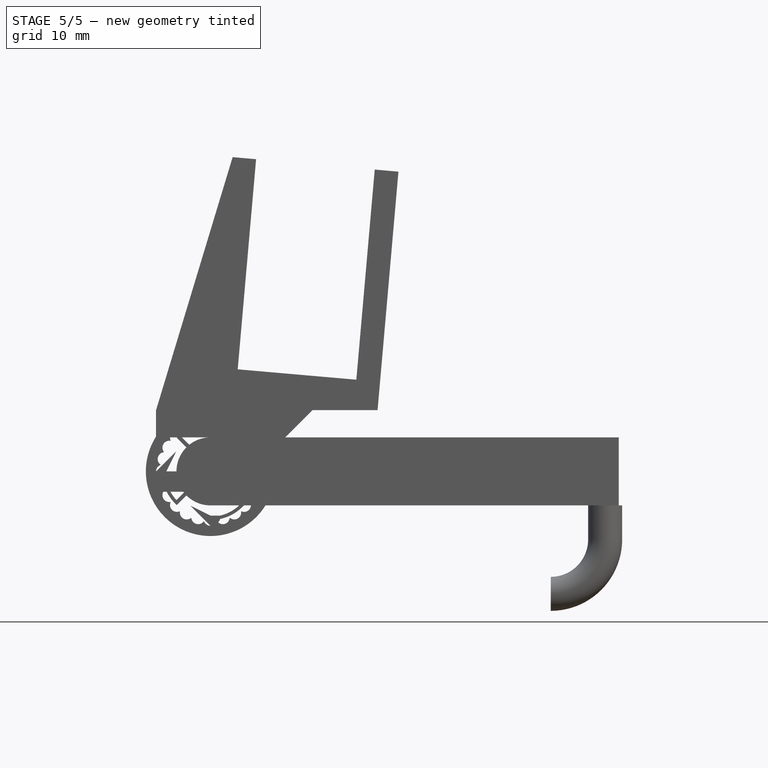
[diagram: stage 5 of 5 — front view after this stage's code; geometry added in this stage tinted green]
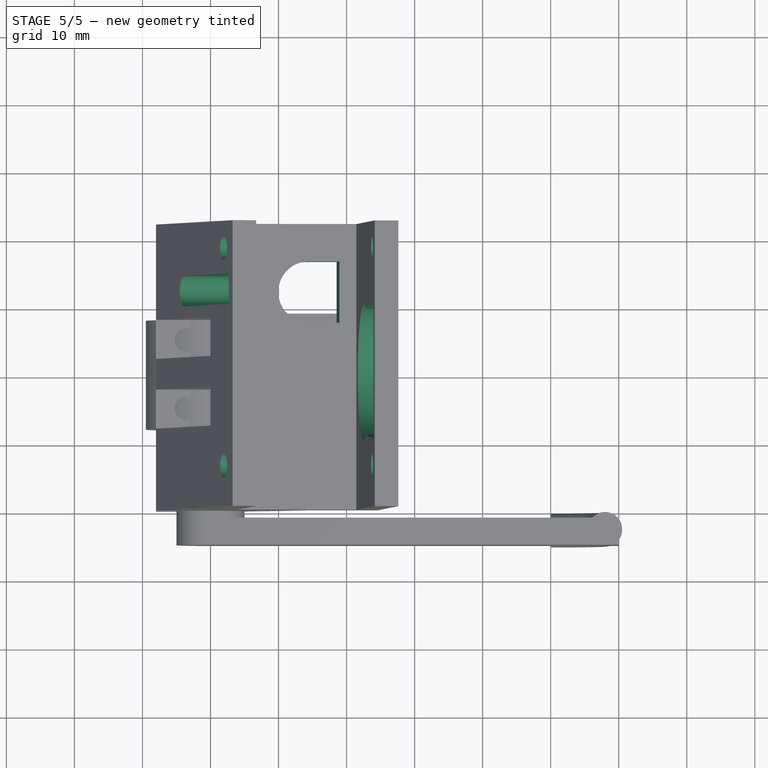
[diagram: stage 5 of 5 — top view after this stage's code; geometry added in this stage tinted green]
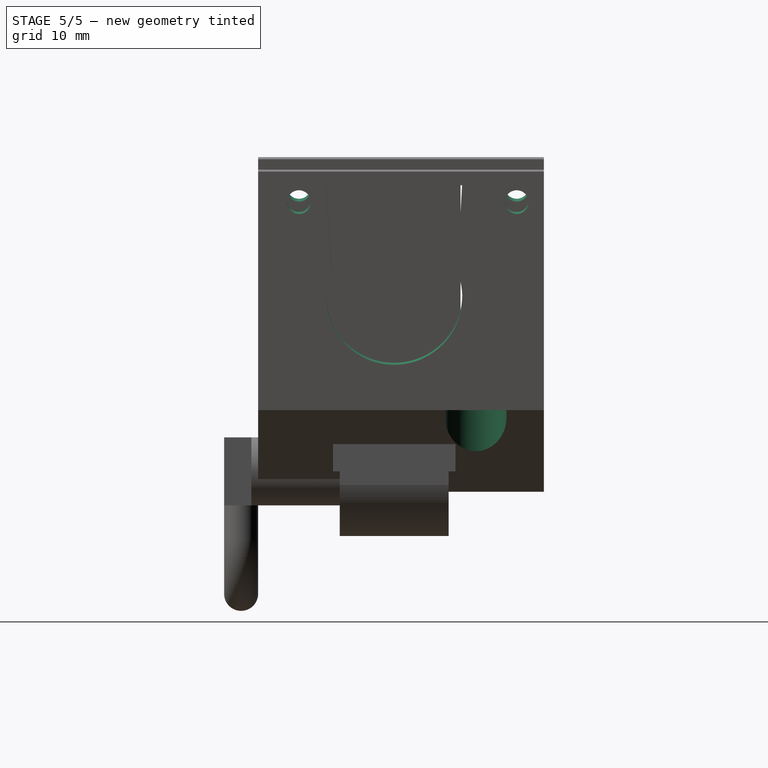
[diagram: stage 5 of 5 — right view after this stage's code; geometry added in this stage tinted green]
FEATURE [Sketcher::SketchObject] Sketch071
  AttachmentOffset = pos=(0,15,4) rot=(1,0,0;0.087266rad)
  FullyConstrained = false
  MapMode = 5
  Placement = pos=(4,2.4e-15,15) rot=(0.593426,0.593426,0.543775;2.14549rad)
  Support = -> [YZ_Plane010]
  sketch-geometry (4):
    g0: ArcOfCircle CenterX=0 CenterY=12.5 CenterZ=0 NormalX=0 NormalY=0 NormalZ=1 AngleXU=0 Radius=10 StartAngle=2.75183 EndAngle=6.67295
    g1: LineSegment StartX=9.25 StartY=16.2997 StartZ=0 EndX=10 EndY=29 EndZ=0
    g2: LineSegment StartX=10 StartY=29 StartZ=0 EndX=-10 EndY=29 EndZ=0
    g3: LineSegment StartX=-10 StartY=29 StartZ=0 EndX=-9.25 EndY=16.2997 EndZ=0
  constraints (13):
    c: PointOnObject(g0,g-2)
    c: Diameter(g0) = 20
    c: DistanceY(g-1,g0) = 12.5
    c: Coincident(g1,g2)
    c: Coincident(g2,g3)
    c: Coincident(g1,g0)
    c: Coincident(g3,g0)
    c: Angle(g0) = -2.36207
    c: Horizontal(g0,g0)
    c: DistanceX(g0,g0) = 18.5
    c: Symmetric(g2,g1,g-2)
    c: DistanceX(g2,g2) = 20
    c: DistanceY(g-1,g1) = 29
FEATURE [Sketcher::SketchObject] Sketch072
  AttachmentOffset = pos=(0,15,4) rot=(1,0,0;0.087266rad)
  FullyConstrained = false
  MapMode = 5
  Placement = pos=(4,2.4e-15,15) rot=(0.593426,0.593426,0.543775;2.14549rad)
  Support = -> [YZ_Plane010]
  sketch-geometry (2):
    g0: Circle CenterX=-14 CenterY=26.5 CenterZ=0 NormalX=0 NormalY=0 NormalZ=1 AngleXU=0 Radius=1.75
    g1: Circle CenterX=18 CenterY=26.5 CenterZ=0 NormalX=0 NormalY=0 NormalZ=1 AngleXU=0 Radius=1.75
  constraints (6):
    c: DistanceX(g0,g1) = 32
    c: Diameter(g1) = 3.5
    c: Equal(g1,g0)
    c: DistanceY(g-1,g0) = 26.5
    c: Horizontal(g1,g0)
    c: DistanceX(g-1,g1) = 18
FEATURE [PartDesign::Pocket] Pocket022  label="screw-above-camera"
  AllowMultiFace = false
  BaseFeature = -> Pocket021
  Length = 5
  Length2 = 100
  Placement = pos=(0,0,0) rot=(1,0,0;1.5708rad)
  Profile = -> Sketch072
  Type = 4
FEATURE [PartDesign::Pocket] Pocket023  label="hole-lens-w-support"
  AllowMultiFace = false
  BaseFeature = -> Pocket022
  Length = 5
  Length2 = 100
  Placement = pos=(0,0,0) rot=(1,0,0;1.5708rad)
  Profile = -> Sketch071
  Reversed = true
  Type = 1
FEATURE [PartDesign::Pocket] Pocket024  label="hole-cable-w-support"
  AllowMultiFace = false
  BaseFeature = -> Pocket023
  Length = 5
  Length2 = 100
  Placement = pos=(0,0,0) rot=(1,0,0;1.5708rad)
  Profile = -> Sketch073
  Type = 1
FEATURE [PartDesign::Pocket] Pocket025
  AllowMultiFace = false
  BaseFeature = -> Pocket024
  Length = 5
  Length2 = 100
  Placement = pos=(0,0,0) rot=(1,0,0;1.5708rad)
  Profile = -> Sketch074
  Type = 1
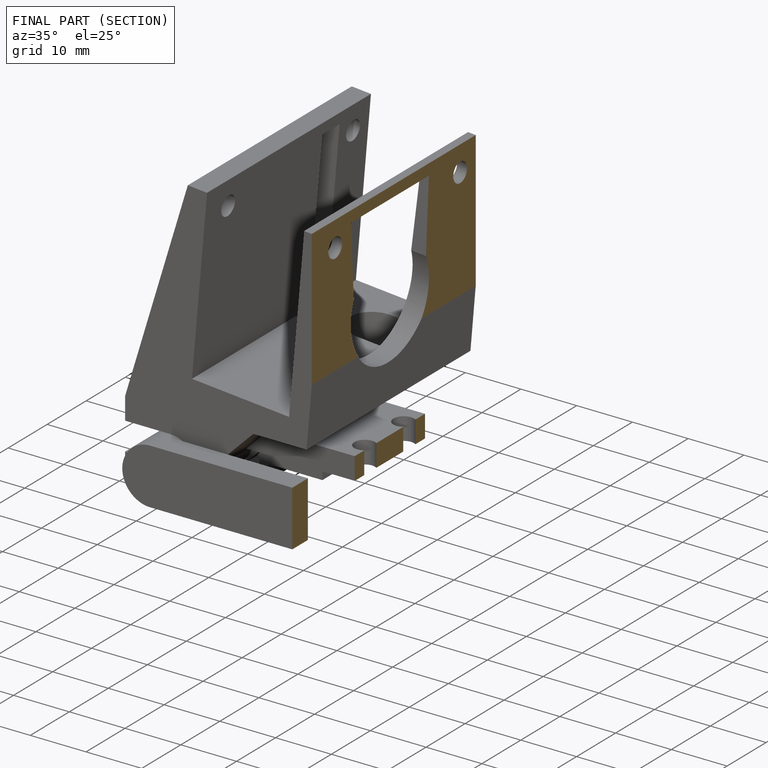
[diagram: finished part — half-section view (interior)]
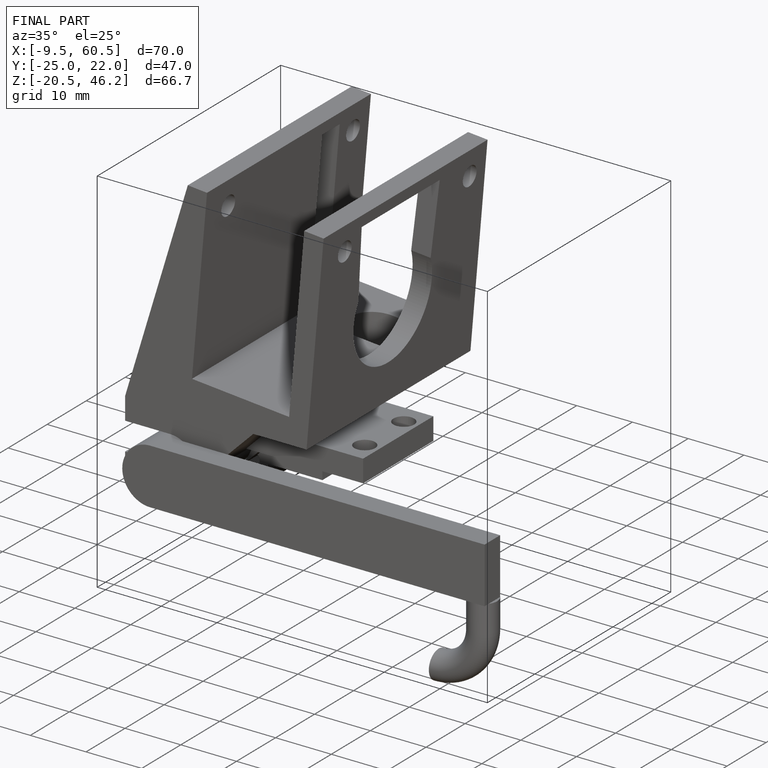
[diagram: finished part — iso view with bounding-box wireframe]
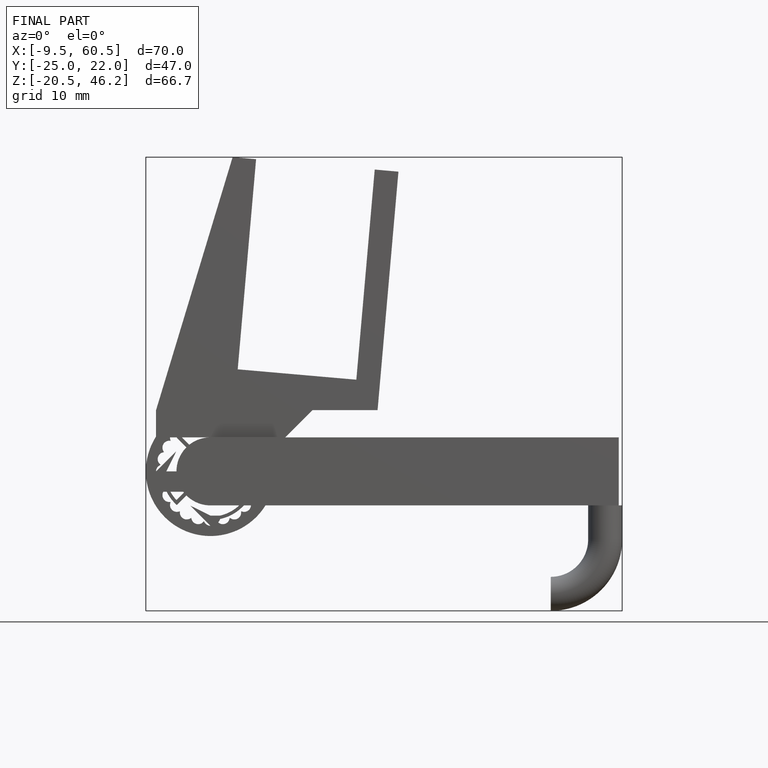
[diagram: finished part — front view with bounding-box wireframe]
